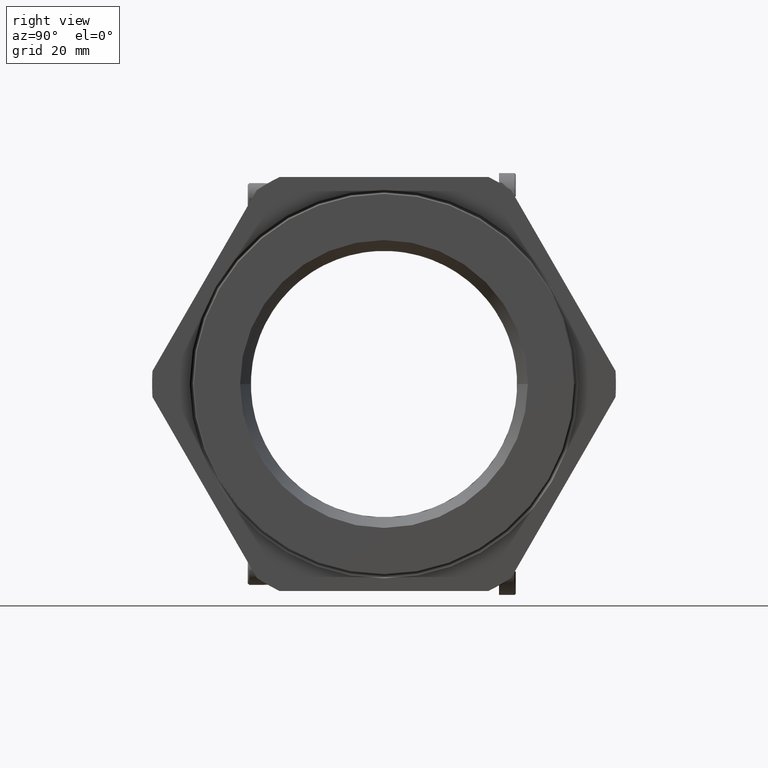
[diagram: clean part render]
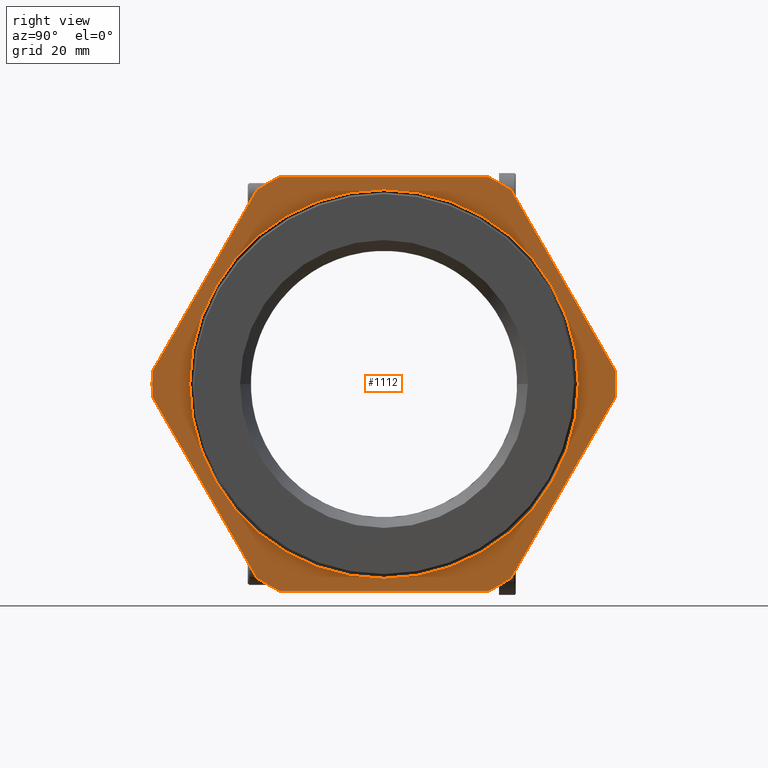
[diagram: same view with one face highlighted and labeled with its STEP entity id]
A machine part, right view. The second image highlights one B-rep face of the part: STEP entity #1112.
In plain terms, the highlighted planar face has unit normal (-1, 0, 0).
Its self-contained STEP definition (entity closure, byte-faithful):
#373 = EDGE_CURVE ( 'NONE', #374, #375, #4005, .T. ) ;
#374 = VERTEX_POINT ( 'NONE', #4001 ) ;
#375 = VERTEX_POINT ( 'NONE', #4000 ) ;
#1099 = VERTEX_POINT ( 'NONE', #5464 ) ;
#1100 = ORIENTED_EDGE ( 'NONE', *, *, #1101, .F. ) ;
#1101 = EDGE_CURVE ( 'NONE', #1102, #1099, #5463, .T. ) ;
#1102 = VERTEX_POINT ( 'NONE', #5458 ) ;
#1103 = ORIENTED_EDGE ( 'NONE', *, *, #1104, .T. ) ;
#1104 = EDGE_CURVE ( 'NONE', #1102, #1105, #5457, .T. ) ;
#1105 = VERTEX_POINT ( 'NONE', #5453 ) ;
#1112 = ADVANCED_FACE ( 'NONE', ( #5503, #5502 ), #5501, .F. ) ;
#1113 = EDGE_LOOP ( 'NONE', ( #1114, #1115 ) ) ;
#1114 = ORIENTED_EDGE ( 'NONE', *, *, #3001, .T. ) ;
#1115 = ORIENTED_EDGE ( 'NONE', *, *, #3004, .T. ) ;
#1116 = EDGE_LOOP ( 'NONE', ( #1117, #1180, #1182, #1183, #1100, #1103, #1162, #1165, #1168, #1171, #1174, #1147, #1150 ) ) ;
#1117 = ORIENTED_EDGE ( 'NONE', *, *, #1177, .T. ) ;
#1147 = ORIENTED_EDGE ( 'NONE', *, *, #1148, .T. ) ;
#1148 = EDGE_CURVE ( 'NONE', #1176, #1149, #5550, .T. ) ;
#1149 = VERTEX_POINT ( 'NONE', #5542 ) ;
#1150 = ORIENTED_EDGE ( 'NONE', *, *, #1151, .F. ) ;
#1151 = EDGE_CURVE ( 'NONE', #1178, #1149, #5541, .T. ) ;
#1162 = ORIENTED_EDGE ( 'NONE', *, *, #1163, .F. ) ;
#1163 = EDGE_CURVE ( 'NONE', #1164, #1105, #5581, .T. ) ;
#1164 = VERTEX_POINT ( 'NONE', #5576 ) ;
#1165 = ORIENTED_EDGE ( 'NONE', *, *, #1166, .T. ) ;
#1166 = EDGE_CURVE ( 'NONE', #1164, #1167, #5575, .T. ) ;
#1167 = VERTEX_POINT ( 'NONE', #5571 ) ;
#1168 = ORIENTED_EDGE ( 'NONE', *, *, #1169, .F. ) ;
#1169 = EDGE_CURVE ( 'NONE', #1170, #1167, #5570, .T. ) ;
#1170 = VERTEX_POINT ( 'NONE', #5327 ) ;
#1171 = ORIENTED_EDGE ( 'NONE', *, *, #1172, .T. ) ;
#1172 = EDGE_CURVE ( 'NONE', #1170, #1173, #5627, .T. ) ;
#1173 = VERTEX_POINT ( 'NONE', #5623 ) ;
#1174 = ORIENTED_EDGE ( 'NONE', *, *, #1175, .F. ) ;
#1175 = EDGE_CURVE ( 'NONE', #1176, #1173, #5622, .T. ) ;
#1176 = VERTEX_POINT ( 'NONE', #5617 ) ;
#1177 = EDGE_CURVE ( 'NONE', #1178, #1179, #5616, .T. ) ;
#1178 = VERTEX_POINT ( 'NONE', #5612 ) ;
#1179 = VERTEX_POINT ( 'NONE', #5611 ) ;
#1180 = ORIENTED_EDGE ( 'NONE', *, *, #1181, .F. ) ;
#1181 = EDGE_CURVE ( 'NONE', #375, #1179, #5610, .T. ) ;
#1182 = ORIENTED_EDGE ( 'NONE', *, *, #373, .F. ) ;
#1183 = ORIENTED_EDGE ( 'NONE', *, *, #1184, .T. ) ;
#1184 = EDGE_CURVE ( 'NONE', #374, #1099, #5605, .T. ) ;
#2992 = VERTEX_POINT ( 'NONE', #8489 ) ;
#2994 = VERTEX_POINT ( 'NONE', #8488 ) ;
#3001 = EDGE_CURVE ( 'NONE', #2994, #2992, #8546, .T. ) ;
#3004 = EDGE_CURVE ( 'NONE', #2992, #2994, #8535, .T. ) ;
#4000 = CARTESIAN_POINT ( 'NONE',  ( 0.5632500000000000300, -1.500799999999999900, 0.0000000000000000000 ) ) ;
#4001 = CARTESIAN_POINT ( 'NONE',  ( 0.5632500000000000300, -1.498409182777363300, -0.08467916490184675100 ) ) ;
#4002 = DIRECTION ( 'NONE',  ( 0.0000000000000000000, -1.000000000000000000, 0.0000000000000000000 ) ) ;
#4003 = DIRECTION ( 'NONE',  ( -1.000000000000000000, 3.248221276105107800E-019, 0.0000000000000000000 ) ) ;
#4004 = AXIS2_PLACEMENT_3D ( 'NONE', #4011, #4003, #4002 ) ;
#4005 = CIRCLE ( 'NONE', #4004, 1.500799999999999900 ) ;
#4011 = CARTESIAN_POINT ( 'NONE',  ( 0.5632500000000000300, 8.591612437768006000E-019, 0.0000000000000000000 ) ) ;
#4843 = DIRECTION ( 'NONE',  ( 0.0000000000000000000, -1.000000000000000000, 0.0000000000000000000 ) ) ;
#5327 = CARTESIAN_POINT ( 'NONE',  ( 0.5632500000000000300, 1.498409182777363300, 0.08467916490184758400 ) ) ;
#5453 = CARTESIAN_POINT ( 'NONE',  ( 0.5632500000000000300, 0.6758702834124311600, -1.339999999999999900 ) ) ;
#5454 = DIRECTION ( 'NONE',  ( 0.0000000000000000000, 1.000000000000000000, 0.0000000000000000000 ) ) ;
#5455 = VECTOR ( 'NONE', #5454, 39.37007874015748100 ) ;
#5456 = CARTESIAN_POINT ( 'NONE',  ( 0.5632500000000000300, -0.6758702834124311600, -1.339999999999999900 ) ) ;
#5457 = LINE ( 'NONE', #5456, #5455 ) ;
#5458 = CARTESIAN_POINT ( 'NONE',  ( 0.5632500000000000300, -0.6758702834124317200, -1.339999999999999600 ) ) ;
#5459 = DIRECTION ( 'NONE',  ( 0.0000000000000000000, -1.000000000000000000, 0.0000000000000000000 ) ) ;
#5460 = DIRECTION ( 'NONE',  ( -1.000000000000000000, 3.248221276105107800E-019, 0.0000000000000000000 ) ) ;
#5461 = CARTESIAN_POINT ( 'NONE',  ( 0.5632500000000000300, 8.591612437768006000E-019, 0.0000000000000000000 ) ) ;
#5462 = AXIS2_PLACEMENT_3D ( 'NONE', #5461, #5460, #5459 ) ;
#5463 = CIRCLE ( 'NONE', #5462, 1.500799999999999900 ) ;
#5464 = CARTESIAN_POINT ( 'NONE',  ( 0.5632500000000000300, -0.8225388993649321900, -1.255320835098153700 ) ) ;
#5497 = DIRECTION ( 'NONE',  ( -3.248221276105107800E-019, -1.000000000000000000, 0.0000000000000000000 ) ) ;
#5498 = DIRECTION ( 'NONE',  ( -1.000000000000000000, 3.248221276105107800E-019, 0.0000000000000000000 ) ) ;
#5499 = CARTESIAN_POINT ( 'NONE',  ( 0.5632500000000000300, 1.242000000000000000, 0.0000000000000000000 ) ) ;
#5500 = AXIS2_PLACEMENT_3D ( 'NONE', #5499, #5498, #5497 ) ;
#5501 = PLANE ( 'NONE',  #5500 ) ;
#5502 = FACE_OUTER_BOUND ( 'NONE', #1116, .T. ) ;
#5503 = FACE_BOUND ( 'NONE', #1113, .T. ) ;
#5537 = DIRECTION ( 'NONE',  ( 0.0000000000000000000, -1.000000000000000000, 0.0000000000000000000 ) ) ;
#5538 = DIRECTION ( 'NONE',  ( -1.000000000000000000, 3.248221276105107800E-019, 0.0000000000000000000 ) ) ;
#5539 = CARTESIAN_POINT ( 'NONE',  ( 0.5632500000000000300, 8.591612437768006000E-019, 0.0000000000000000000 ) ) ;
#5540 = AXIS2_PLACEMENT_3D ( 'NONE', #5539, #5538, #5537 ) ;
#5541 = CIRCLE ( 'NONE', #5540, 1.500799999999999900 ) ;
#5542 = CARTESIAN_POINT ( 'NONE',  ( 0.5632500000000000300, -0.6758702834124307200, 1.340000000000000100 ) ) ;
#5543 = DIRECTION ( 'NONE',  ( 0.0000000000000000000, -1.000000000000000000, 0.0000000000000000000 ) ) ;
#5544 = VECTOR ( 'NONE', #5543, 39.37007874015748100 ) ;
#5545 = CARTESIAN_POINT ( 'NONE',  ( 0.5632500000000000300, 0.6758702834124307200, 1.340000000000000100 ) ) ;
#5550 = LINE ( 'NONE', #5545, #5544 ) ;
#5567 = DIRECTION ( 'NONE',  ( -1.000000000000000000, 3.248221276105107800E-019, 0.0000000000000000000 ) ) ;
#5568 = CARTESIAN_POINT ( 'NONE',  ( 0.5632500000000000300, 8.591612437768006000E-019, 0.0000000000000000000 ) ) ;
#5569 = AXIS2_PLACEMENT_3D ( 'NONE', #5568, #5567, #4843 ) ;
#5570 = CIRCLE ( 'NONE', #5569, 1.500799999999999900 ) ;
#5571 = CARTESIAN_POINT ( 'NONE',  ( 0.5632500000000000300, 1.498409182777363300, -0.08467916490184590500 ) ) ;
#5572 = DIRECTION ( 'NONE',  ( 0.0000000000000000000, 0.4999999999999995600, 0.8660254037844388200 ) ) ;
#5573 = VECTOR ( 'NONE', #5572, 39.37007874015748900 ) ;
#5574 = CARTESIAN_POINT ( 'NONE',  ( 0.5632500000000000300, 0.8225388993649333000, -1.255320835098152800 ) ) ;
#5575 = LINE ( 'NONE', #5574, #5573 ) ;
#5576 = CARTESIAN_POINT ( 'NONE',  ( 0.5632500000000000300, 0.8225388993649334100, -1.255320835098152800 ) ) ;
#5577 = DIRECTION ( 'NONE',  ( 0.0000000000000000000, -1.000000000000000000, 0.0000000000000000000 ) ) ;
#5578 = DIRECTION ( 'NONE',  ( -1.000000000000000000, 3.248221276105107800E-019, 0.0000000000000000000 ) ) ;
#5579 = CARTESIAN_POINT ( 'NONE',  ( 0.5632500000000000300, 8.591612437768006000E-019, 0.0000000000000000000 ) ) ;
#5580 = AXIS2_PLACEMENT_3D ( 'NONE', #5579, #5578, #5577 ) ;
#5581 = CIRCLE ( 'NONE', #5580, 1.500799999999999900 ) ;
#5602 = DIRECTION ( 'NONE',  ( 0.0000000000000000000, 0.5000000000000002200, -0.8660254037844384900 ) ) ;
#5603 = VECTOR ( 'NONE', #5602, 39.37007874015749600 ) ;
#5604 = CARTESIAN_POINT ( 'NONE',  ( 0.5632500000000000300, -1.498409182777363300, -0.08467916490184712600 ) ) ;
#5605 = LINE ( 'NONE', #5604, #5603 ) ;
#5606 = DIRECTION ( 'NONE',  ( 0.0000000000000000000, -1.000000000000000000, 0.0000000000000000000 ) ) ;
#5607 = DIRECTION ( 'NONE',  ( -1.000000000000000000, 3.248221276105107800E-019, 0.0000000000000000000 ) ) ;
#5608 = CARTESIAN_POINT ( 'NONE',  ( 0.5632500000000000300, 8.591612437768006000E-019, 0.0000000000000000000 ) ) ;
#5609 = AXIS2_PLACEMENT_3D ( 'NONE', #5608, #5607, #5606 ) ;
#5610 = CIRCLE ( 'NONE', #5609, 1.500799999999999900 ) ;
#5611 = CARTESIAN_POINT ( 'NONE',  ( 0.5632500000000000300, -1.498409182777363300, 0.08467916490184548800 ) ) ;
#5612 = CARTESIAN_POINT ( 'NONE',  ( 0.5632500000000000300, -0.8225388993649324100, 1.255320835098153300 ) ) ;
#5613 = DIRECTION ( 'NONE',  ( 0.0000000000000000000, -0.4999999999999996100, -0.8660254037844388200 ) ) ;
#5614 = VECTOR ( 'NONE', #5613, 39.37007874015748900 ) ;
#5615 = CARTESIAN_POINT ( 'NONE',  ( 0.5632500000000000300, -0.8225388993649324100, 1.255320835098153300 ) ) ;
#5616 = LINE ( 'NONE', #5615, #5614 ) ;
#5617 = CARTESIAN_POINT ( 'NONE',  ( 0.5632500000000000300, 0.6758702834124307200, 1.340000000000000100 ) ) ;
#5618 = DIRECTION ( 'NONE',  ( 0.0000000000000000000, -1.000000000000000000, 0.0000000000000000000 ) ) ;
#5619 = DIRECTION ( 'NONE',  ( -1.000000000000000000, 3.248221276105107800E-019, 0.0000000000000000000 ) ) ;
#5620 = CARTESIAN_POINT ( 'NONE',  ( 0.5632500000000000300, 8.591612437768006000E-019, 0.0000000000000000000 ) ) ;
#5621 = AXIS2_PLACEMENT_3D ( 'NONE', #5620, #5619, #5618 ) ;
#5622 = CIRCLE ( 'NONE', #5621, 1.500799999999999900 ) ;
#5623 = CARTESIAN_POINT ( 'NONE',  ( 0.5632500000000000300, 0.8225388993649327400, 1.255320835098153700 ) ) ;
#5624 = DIRECTION ( 'NONE',  ( 0.0000000000000000000, -0.5000000000000002200, 0.8660254037844384900 ) ) ;
#5625 = VECTOR ( 'NONE', #5624, 39.37007874015749600 ) ;
#5626 = CARTESIAN_POINT ( 'NONE',  ( 0.5632500000000000300, 1.498409182777363300, 0.08467916490184794500 ) ) ;
#5627 = LINE ( 'NONE', #5626, #5625 ) ;
#8488 = CARTESIAN_POINT ( 'NONE',  ( 0.5632500000000000300, 0.0000000000000000000, 1.257471405209656100 ) ) ;
#8489 = CARTESIAN_POINT ( 'NONE',  ( 0.5632500000000000300, 1.539958331409329700E-016, -1.257471405209656100 ) ) ;
#8531 = DIRECTION ( 'NONE',  ( 0.0000000000000000000, -1.000000000000000000, 0.0000000000000000000 ) ) ;
#8532 = DIRECTION ( 'NONE',  ( -1.000000000000000000, 3.248221276105107800E-019, 0.0000000000000000000 ) ) ;
#8533 = CARTESIAN_POINT ( 'NONE',  ( 0.5632500000000000300, 3.248221276104452900E-022, 0.0000000000000000000 ) ) ;
#8534 = AXIS2_PLACEMENT_3D ( 'NONE', #8533, #8532, #8531 ) ;
#8535 = CIRCLE ( 'NONE', #8534, 1.257471405209656100 ) ;
#8542 = DIRECTION ( 'NONE',  ( 0.0000000000000000000, -1.000000000000000000, 0.0000000000000000000 ) ) ;
#8543 = DIRECTION ( 'NONE',  ( -1.000000000000000000, 3.248221276105107800E-019, 0.0000000000000000000 ) ) ;
#8544 = CARTESIAN_POINT ( 'NONE',  ( 0.5632500000000000300, 3.248221276104452900E-022, 0.0000000000000000000 ) ) ;
#8545 = AXIS2_PLACEMENT_3D ( 'NONE', #8544, #8543, #8542 ) ;
#8546 = CIRCLE ( 'NONE', #8545, 1.257471405209656100 ) ;